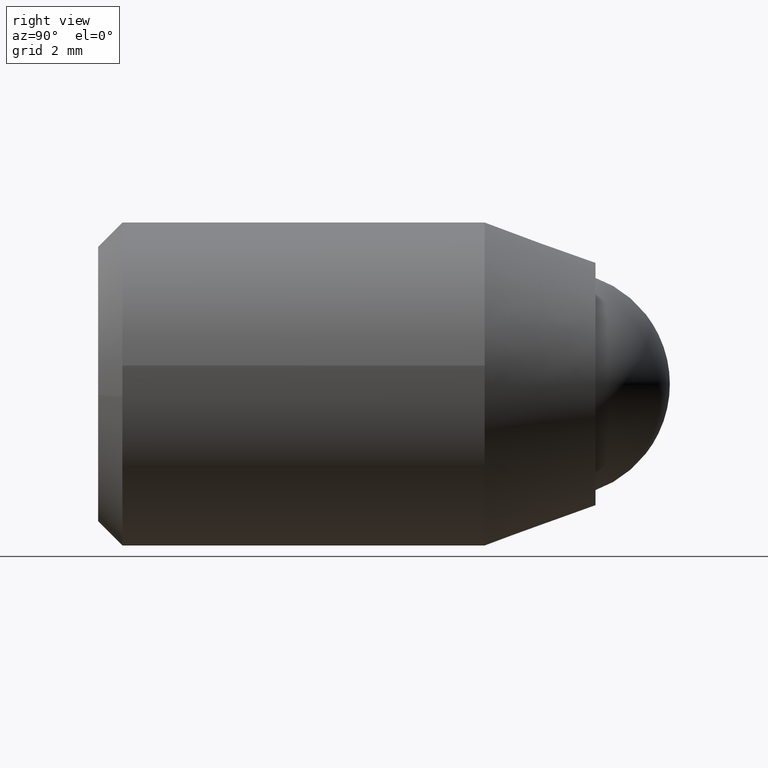
[diagram: clean part render]
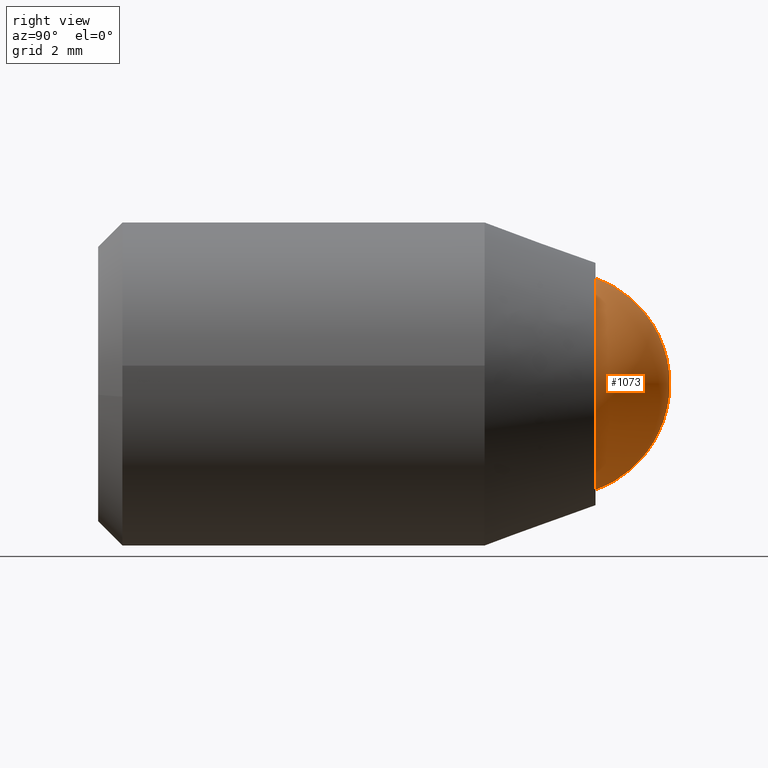
[diagram: same view with one face highlighted and labeled with its STEP entity id]
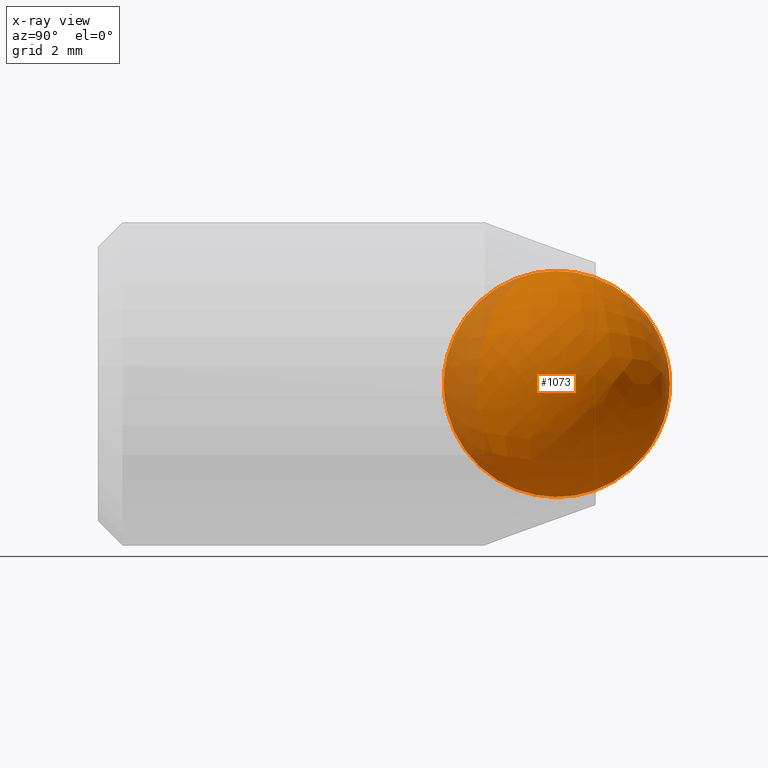
[diagram: x-ray of the same camera — body ghosted, the highlighted face saturated]
A machine part, right view. The second image highlights one B-rep face of the part: STEP entity #1073.
The next image is the same camera in x-ray: the body ghosted, the highlighted face saturated — about 14% of this face is hidden behind the body in this view.
In plain terms, the highlighted face is a freeform B-spline surface patch.
Its self-contained STEP definition (entity closure, byte-faithful):
#993=CARTESIAN_POINT('',(-1.312499999999999,-3.494269355372206,-2.294269355372205));
#994=CARTESIAN_POINT('',(-0.858490566037736,-3.277828850148413,-2.770438466864550));
#995=CARTESIAN_POINT('',(-0.166666666666667,-2.074007373475126,-3.496029493900503));
#996=CARTESIAN_POINT('',(-0.166666666666667,-0.325992626524874,-3.496029493900503));
#997=CARTESIAN_POINT('',(-0.858490566037736,0.877828850148413,-2.770438466864550));
#998=CARTESIAN_POINT('',(-1.312499999999999,1.094269355372206,-2.294269355372205));
#999=CARTESIAN_POINT('',(-0.858490566037736,-3.970438466864551,-2.077828850148412));
#1000=CARTESIAN_POINT('',(-0.166666666666667,-3.822022120425378,-2.622022120425377));
#1001=CARTESIAN_POINT('',(1.016129032258064,-2.384139022127589,-3.552417066382769));
#1002=CARTESIAN_POINT('',(1.016129032258064,-0.015860977872410,-3.552417066382769));
#1003=CARTESIAN_POINT('',(-0.166666666666667,1.422022120425378,-2.622022120425377));
#1004=CARTESIAN_POINT('',(-0.858490566037736,1.570438466864551,-2.077828850148412));
#1005=CARTESIAN_POINT('',(-0.166666666666667,-4.696029493900504,-0.874007373475125));
#1006=CARTESIAN_POINT('',(1.016129032258064,-4.752417066382770,-1.184139022127589));
#1007=CARTESIAN_POINT('',(3.499999999999999,-3.035415484297764,-1.835415484297764));
#1008=CARTESIAN_POINT('',(3.499999999999999,0.635415484297764,-1.835415484297764));
#1009=CARTESIAN_POINT('',(1.016129032258064,2.352417066382770,-1.184139022127589));
#1010=CARTESIAN_POINT('',(-0.166666666666667,2.296029493900504,-0.874007373475125));
#1011=CARTESIAN_POINT('',(-0.166666666666667,-4.696029493900504,0.874007373475127));
#1012=CARTESIAN_POINT('',(1.016129032258064,-4.752417066382770,1.184139022127590));
#1013=CARTESIAN_POINT('',(3.499999999999999,-3.035415484297764,1.835415484297765));
#1014=CARTESIAN_POINT('',(3.499999999999999,0.635415484297764,1.835415484297765));
#1015=CARTESIAN_POINT('',(1.016129032258064,2.352417066382770,1.184139022127590));
#1016=CARTESIAN_POINT('',(-0.166666666666667,2.296029493900504,0.874007373475127));
#1017=CARTESIAN_POINT('',(-0.858490566037736,-3.970438466864551,2.077828850148414));
#1018=CARTESIAN_POINT('',(-0.166666666666667,-3.822022120425378,2.622022120425379));
#1019=CARTESIAN_POINT('',(1.016129032258064,-2.384139022127589,3.552417066382771));
#1020=CARTESIAN_POINT('',(1.016129032258064,-0.015860977872410,3.552417066382771));
#1021=CARTESIAN_POINT('',(-0.166666666666667,1.422022120425378,2.622022120425379));
#1022=CARTESIAN_POINT('',(-0.858490566037736,1.570438466864551,2.077828850148414));
#1023=CARTESIAN_POINT('',(-1.312499999999999,-3.494269355372206,2.294269355372207));
#1024=CARTESIAN_POINT('',(-0.858490566037736,-3.277828850148413,2.770438466864551));
#1025=CARTESIAN_POINT('',(-0.166666666666667,-2.074007373475126,3.496029493900505));
#1026=CARTESIAN_POINT('',(-0.166666666666667,-0.325992626524874,3.496029493900505));
#1027=CARTESIAN_POINT('',(-0.858490566037736,0.877828850148413,2.770438466864551));
#1028=CARTESIAN_POINT('',(-1.312499999999999,1.094269355372206,2.294269355372207));
#1036=(BOUNDED_SURFACE()B_SPLINE_SURFACE(2,2,((#993,#999,#1005,#1011,#1017,#1023),(#994,#1000,#1006,#1012,#1018,#1024),(#995,#1001,#1007,#1013,#1019,#1025),(#996,#1002,#1008,#1014,#1020,#1026),(#997,#1003,#1009,#1015,#1021,#1027),(#998,#1004,#1010,#1016,#1022,#1028)),.UNSPECIFIED.,.F.,.F.,.U.)B_SPLINE_SURFACE_WITH_KNOTS((3,1,1,1,3),(3,1,1,1,3),(0.0,3.227104148215851,6.454208296431702,9.681312444647553,12.908416592863400),(0.0,3.227104148215851,6.454208296431701,9.681312444647551,12.908416592863400),.UNSPECIFIED.)GEOMETRIC_REPRESENTATION_ITEM()RATIONAL_B_SPLINE_SURFACE(((3.200000000000000,2.650000000000000,2.100000000000000,2.100000000000000,2.650000000000000,3.200000000000000),(2.650000000000000,2.100000000000000,1.550000000000000,1.550000000000000,2.100000000000000,2.650000000000000),(2.100000000000000,1.550000000000000,1.0,1.0,1.550000000000000,2.100000000000000),(2.100000000000000,1.550000000000000,1.0,1.0,1.550000000000000,2.100000000000000),(2.650000000000000,2.100000000000000,1.550000000000000,1.550000000000000,2.100000000000000,2.650000000000000),(3.200000000000000,2.650000000000000,2.100000000000000,2.100000000000000,2.650000000000000,3.200000000000000)))REPRESENTATION_ITEM('')SURFACE());
#1037=CARTESIAN_POINT('',(0.0,2.300000000000000,7.163947E-016));
#1038=VERTEX_POINT('',#1037);
#1039=CARTESIAN_POINT('',(0.0,-4.700000000000000,7.163947E-016));
#1040=VERTEX_POINT('',#1039);
#1041=CARTESIAN_POINT('',(0.0,2.300000000000000,7.163947E-016));
#1042=CARTESIAN_POINT('',(0.0,2.300000000000000,3.500000000000001));
#1043=CARTESIAN_POINT('',(0.0,-1.200000000000000,3.500000000000001));
#1044=CARTESIAN_POINT('',(0.0,-4.700000000000000,3.500000000000001));
#1045=CARTESIAN_POINT('',(0.0,-4.700000000000000,7.163947E-016));
#1053=(BOUNDED_CURVE()B_SPLINE_CURVE(2,(#1041,#1042,#1043,#1044,#1045),.UNSPECIFIED.,.F.,.U.)B_SPLINE_CURVE_WITH_KNOTS((3,2,3),(0.0,0.500000000000000,1.0),.UNSPECIFIED.)CURVE()GEOMETRIC_REPRESENTATION_ITEM()RATIONAL_B_SPLINE_CURVE((1.0,0.707106781186547,1.0,0.707106781186547,1.0))REPRESENTATION_ITEM(''));
#1054=EDGE_CURVE('',#1038,#1040,#1053,.T.);
#1055=ORIENTED_EDGE('',*,*,#1054,.T.);
#1056=CARTESIAN_POINT('',(0.0,2.300000000000000,7.163947E-016));
#1057=CARTESIAN_POINT('',(0.0,2.300000000000000,-3.499999999999998));
#1058=CARTESIAN_POINT('',(0.0,-1.200000000000000,-3.499999999999999));
#1059=CARTESIAN_POINT('',(0.0,-4.700000000000000,-3.499999999999998));
#1060=CARTESIAN_POINT('',(0.0,-4.700000000000000,7.163947E-016));
#1068=(BOUNDED_CURVE()B_SPLINE_CURVE(2,(#1056,#1057,#1058,#1059,#1060),.UNSPECIFIED.,.F.,.U.)B_SPLINE_CURVE_WITH_KNOTS((3,2,3),(0.0,0.500000000000000,1.0),.UNSPECIFIED.)CURVE()GEOMETRIC_REPRESENTATION_ITEM()RATIONAL_B_SPLINE_CURVE((1.0,0.707106781186547,1.0,0.707106781186547,1.0))REPRESENTATION_ITEM(''));
#1069=EDGE_CURVE('',#1038,#1040,#1068,.T.);
#1070=ORIENTED_EDGE('',*,*,#1069,.F.);
#1071=EDGE_LOOP('',(#1055,#1070));
#1072=FACE_OUTER_BOUND('',#1071,.T.);
#1073=ADVANCED_FACE('',(#1072),#1036,.T.);